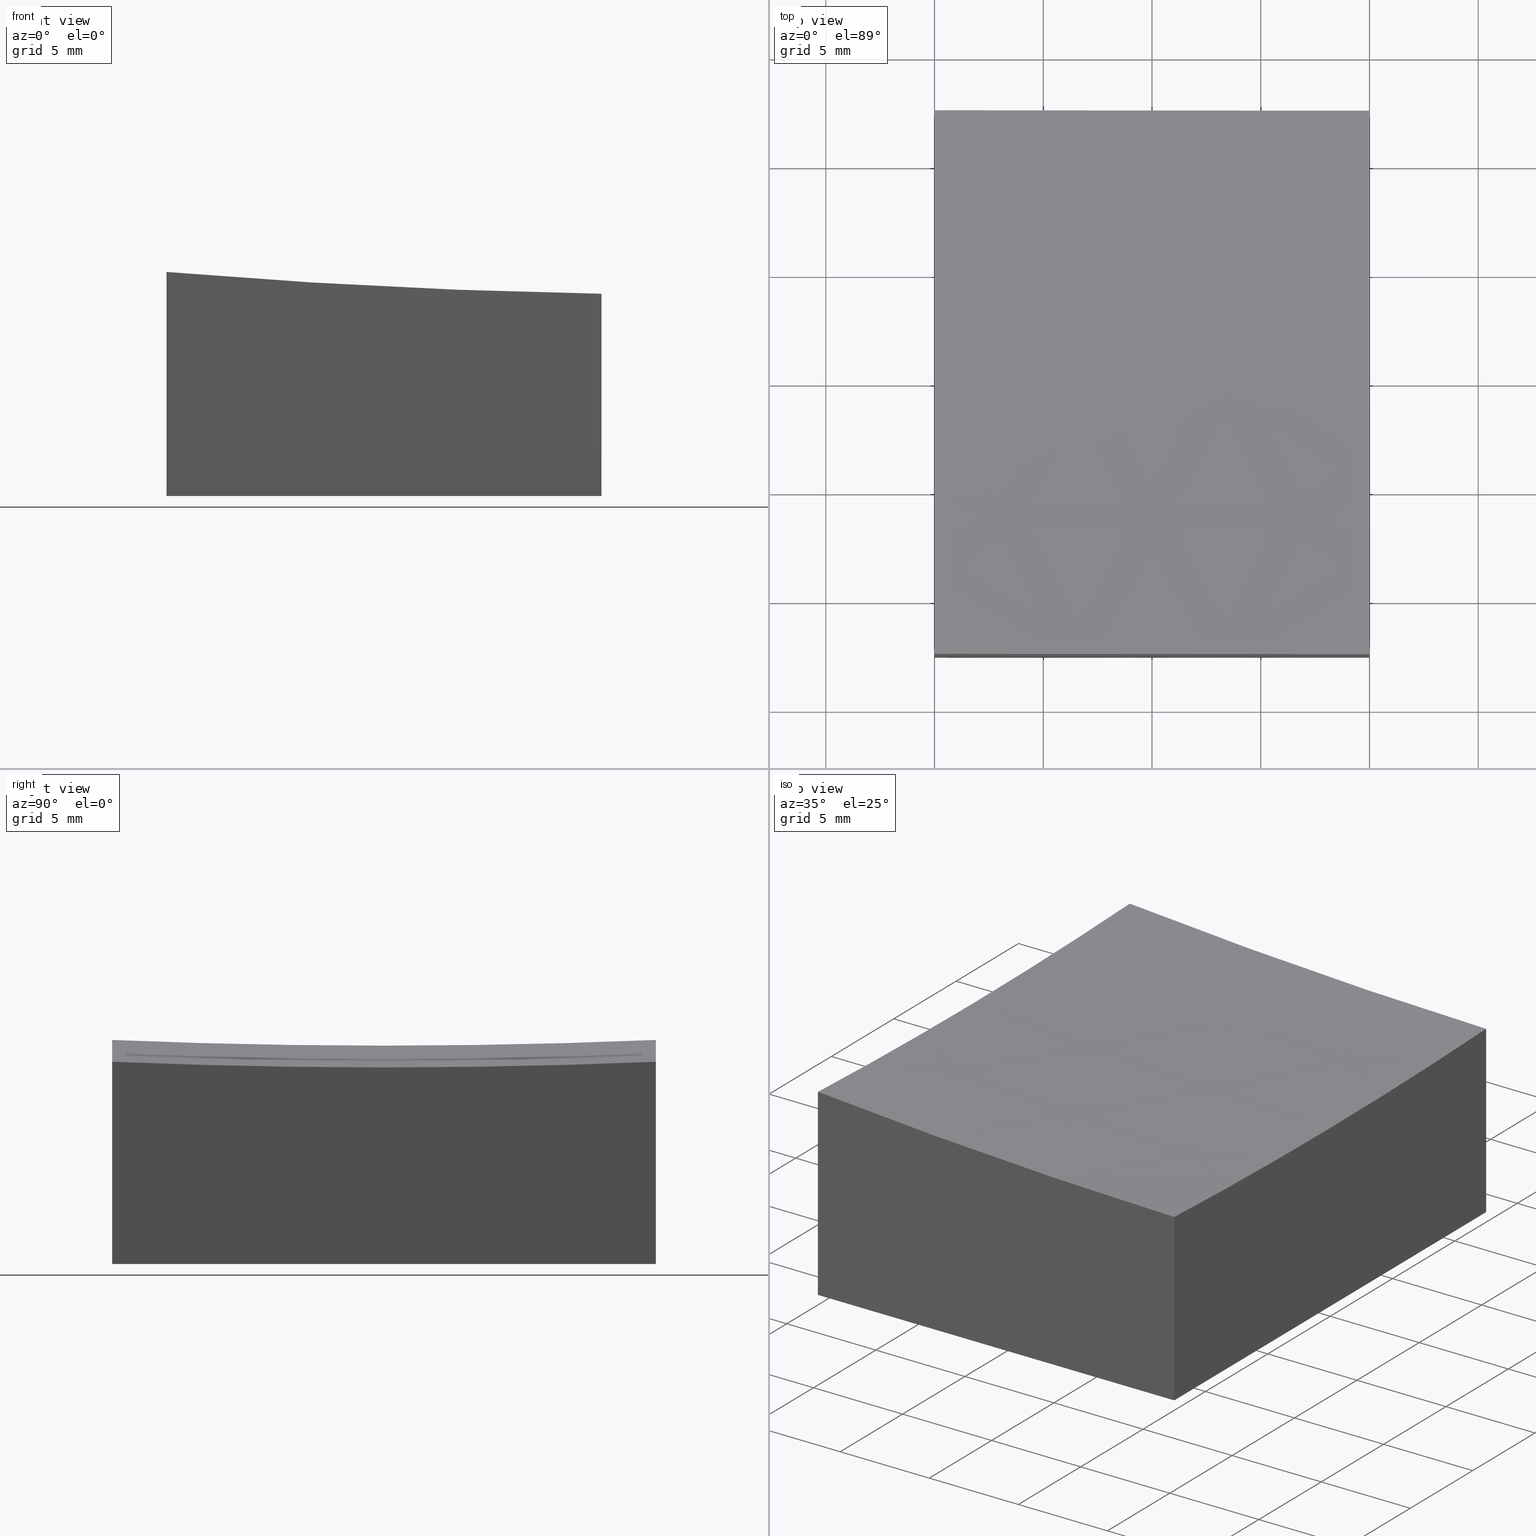
[diagram: canonical four-view strip — front | top / right | iso, engineering-drawing reading convention]
A machine part, canonical four-view strip (front | top / right | iso — engineering-drawing reading convention). The complete STEP part file that produces these views, byte-faithful:
ISO-10303-21;
HEADER;
FILE_DESCRIPTION (( 'STEP AP203' ),
    '1' );
FILE_NAME ('270638.step',
    '2024-12-24T02:21:32',
    ( '' ),
    ( '' ),
    'SwSTEP 2.0',
    'SolidWorks 2020',
    '' );
FILE_SCHEMA (( 'CONFIG_CONTROL_DESIGN' ));
ENDSEC;

DATA;
#1 = ORIENTED_EDGE ( 'NONE', *, *, #180, .F. ) ;
#2 = FACE_OUTER_BOUND ( 'NONE', #234, .T. ) ;
#3 = AXIS2_PLACEMENT_3D ( 'NONE', #55, #5, #74 ) ;
#4 = DIRECTION ( 'NONE',  ( -1.000000000000000000, -1.734723475976807094E-16, 0.000000000000000000 ) ) ;
#5 = DIRECTION ( 'NONE',  ( 0.000000000000000000, 1.000000000000000000, -0.000000000000000000 ) ) ;
#6 = LINE ( 'NONE', #240, #251 ) ;
#7 = DATE_AND_TIME ( #201, #185 ) ;
#8 = DIRECTION ( 'NONE',  ( -0.000000000000000000, -0.000000000000000000, -1.000000000000000000 ) ) ;
#9 = ADVANCED_FACE ( 'NONE', ( #19 ), #192, .F. ) ;
#10 = ADVANCED_FACE ( 'NONE', ( #154 ), #274, .F. ) ;
#11 = CC_DESIGN_APPROVAL ( #170, ( #153 ) ) ;
#12 = CARTESIAN_POINT ( 'NONE',  ( 10.00000000000000178, -12.50000000000000000, -10.00000000000000000 ) ) ;
#13 = DIRECTION ( 'NONE',  ( -1.000000000000000000, 0.000000000000000000, 0.000000000000000000 ) ) ;
#14 = LOCAL_TIME ( 10, 21, 32.00000000000000000, #111 ) ;
#15 = SECURITY_CLASSIFICATION_LEVEL ( 'unclassified' ) ;
#16 = PRODUCT ( '270638', '270638', '', ( #80 ) ) ;
#17 = COORDINATED_UNIVERSAL_TIME_OFFSET ( 8, 0, .AHEAD. ) ;
#18 = APPROVAL_DATE_TIME ( #92, #115 ) ;
#19 = FACE_OUTER_BOUND ( 'NONE', #132, .T. ) ;
#20 = ORIENTED_EDGE ( 'NONE', *, *, #21, .F. ) ;
#21 = EDGE_CURVE ( 'NONE', #220, #133, #186, .T. ) ;
#22 = ADVANCED_BREP_SHAPE_REPRESENTATION ( '270638', ( #228, #168 ), #88 ) ;
#23 = ORIENTED_EDGE ( 'NONE', *, *, #39, .F. ) ;
#24 = APPROVAL_PERSON_ORGANIZATION ( #163, #115, #273 ) ;
#25 = VERTEX_POINT ( 'NONE', #73 ) ;
#26 = VERTEX_POINT ( 'NONE', #79 ) ;
#27 = LINE ( 'NONE', #246, #130 ) ;
#28 = EDGE_CURVE ( 'NONE', #195, #118, #260, .T. ) ;
#29 = LOCAL_TIME ( 10, 21, 32.00000000000000000, #17 ) ;
#30 = CARTESIAN_POINT ( 'NONE',  ( -9.999999999999998224, -12.50000000000000355, -10.00000000000000000 ) ) ;
#31 =( LENGTH_UNIT ( ) NAMED_UNIT ( * ) SI_UNIT ( .MILLI., .METRE. ) );
#32 = EDGE_CURVE ( 'NONE', #190, #220, #227, .T. ) ;
#33 = DIRECTION ( 'NONE',  ( 0.000000000000000000, -0.000000000000000000, 1.000000000000000000 ) ) ;
#34 = DIRECTION ( 'NONE',  ( -1.000000000000000000, -1.734723475976807094E-16, 0.000000000000000000 ) ) ;
#35 = CARTESIAN_POINT ( 'NONE',  ( -9.999999999999998224, -12.50000000000000355, 10.00000000000000000 ) ) ;
#36 = VECTOR ( 'NONE', #134, 1000.000000000000000 ) ;
#37 = DATE_AND_TIME ( #229, #62 ) ;
#38 = DESIGN_CONTEXT ( 'detailed design', #194, 'design' ) ;
#39 = EDGE_CURVE ( 'NONE', #218, #217, #222, .T. ) ;
#40 = EDGE_CURVE ( 'NONE', #118, #217, #98, .T. ) ;
#41 = APPLICATION_CONTEXT ( 'configuration controlled 3d designs of mechanical parts and assemblies' ) ;
#42 = CC_DESIGN_APPROVAL ( #115, ( #156 ) ) ;
#43 = ORIENTED_EDGE ( 'NONE', *, *, #28, .F. ) ;
#44 = ORIENTED_EDGE ( 'NONE', *, *, #180, .T. ) ;
#45 = DIRECTION ( 'NONE',  ( 1.000000000000000000, 1.734723475976807094E-16, 0.000000000000000000 ) ) ;
#46 = ORIENTED_EDGE ( 'NONE', *, *, #165, .F. ) ;
#47 = VERTEX_POINT ( 'NONE', #167 ) ;
#48 = DIRECTION ( 'NONE',  ( 1.000000000000000000, 1.736231275892908730E-16, 0.000000000000000000 ) ) ;
#49 = ADVANCED_FACE ( 'NONE', ( #100 ), #124, .F. ) ;
#50 = CARTESIAN_POINT ( 'NONE',  ( -9.999999999999996447, 0.000000000000000000, 299.0000000000000000 ) ) ;
#51 = COORDINATED_UNIVERSAL_TIME_OFFSET ( 8, 0, .AHEAD. ) ;
#52 = PRODUCT_RELATED_PRODUCT_CATEGORY ( 'detail', '', ( #16 ) ) ;
#53 = CIRCLE ( 'NONE', #210, 299.7394702070449171 ) ;
#54 = CARTESIAN_POINT ( 'NONE',  ( 10.00000000000000178, -12.50000000000000000, -10.00000000000000000 ) ) ;
#55 = CARTESIAN_POINT ( 'NONE',  ( 15.00000000000003908, 0.000000000000000000, 299.0000000000000000 ) ) ;
#56 = CARTESIAN_POINT ( 'NONE',  ( -9.999999999999996447, 0.000000000000000000, 0.04348142246501929264 ) ) ;
#57 = APPROVAL_ROLE ( '' ) ;
#58 = CARTESIAN_POINT ( 'NONE',  ( -9.999999999999996447, 0.000000000000000000, 299.0000000000000000 ) ) ;
#59 = PERSON ( 'δָ��', 'δָ��', 'δָ��', ('δָ��'), ('δָ��'), ('δָ��') ) ;
#60 =( NAMED_UNIT ( * ) SI_UNIT ( $, .STERADIAN. ) SOLID_ANGLE_UNIT ( ) );
#61 = CC_DESIGN_DATE_AND_TIME_ASSIGNMENT ( #272, #109, ( #153 ) ) ;
#62 = LOCAL_TIME ( 10, 21, 32.00000000000000000, #125 ) ;
#63 = PERSON_AND_ORGANIZATION ( #59, #175 ) ;
#64 = DATE_AND_TIME ( #250, #29 ) ;
#65 = PRODUCT_DEFINITION_SHAPE ( 'NONE', 'NONE',  #164 ) ;
#66 = EDGE_LOOP ( 'NONE', ( #23, #255, #157, #71, #232 ) ) ;
#67 = ORIENTED_EDGE ( 'NONE', *, *, #135, .T. ) ;
#68 = AXIS2_PLACEMENT_3D ( 'NONE', #202, #104, #179 ) ;
#69 = DIRECTION ( 'NONE',  ( 1.000000000000000000, 0.000000000000000000, 0.000000000000000000 ) ) ;
#70 = EDGE_LOOP ( 'NONE', ( #46, #253, #89, #43 ) ) ;
#71 = ORIENTED_EDGE ( 'NONE', *, *, #85, .T. ) ;
#72 = DIRECTION ( 'NONE',  ( -0.000000000000000000, -0.000000000000000000, -1.000000000000000000 ) ) ;
#73 = CARTESIAN_POINT ( 'NONE',  ( -9.999999999999998224, 12.49999999999999645, 0.3049213662870142727 ) ) ;
#74 = DIRECTION ( 'NONE',  ( -1.000000000000000000, 0.000000000000000000, 0.000000000000000000 ) ) ;
#75 = ADVANCED_FACE ( 'NONE', ( #2 ), #242, .F. ) ;
#76 = DIRECTION ( 'NONE',  ( 1.734723475976807094E-16, -1.000000000000000000, 0.000000000000000000 ) ) ;
#77 = DATE_TIME_ROLE ( 'creation_date' ) ;
#78 = AXIS2_PLACEMENT_3D ( 'NONE', #58, #181, #119 ) ;
#79 = CARTESIAN_POINT ( 'NONE',  ( -9.999999999999998224, -12.50000000000000355, 0.3049213662870142727 ) ) ;
#80 = MECHANICAL_CONTEXT ( 'NONE', #41, 'mechanical' ) ;
#81 = CARTESIAN_POINT ( 'NONE',  ( 15.00000000000003908, 0.000000000000000000, 299.0000000000000000 ) ) ;
#82 = FACE_OUTER_BOUND ( 'NONE', #66, .T. ) ;
#83 = PERSON_AND_ORGANIZATION ( #59, #175 ) ;
#84 = CIRCLE ( 'NONE', #78, 298.9565185775349505 ) ;
#85 = EDGE_CURVE ( 'NONE', #133, #118, #27, .T. ) ;
#86 = EDGE_CURVE ( 'NONE', #190, #25, #84, .T. ) ;
#87 = CALENDAR_DATE ( 2024, 24, 12 ) ;
#88 =( GEOMETRIC_REPRESENTATION_CONTEXT ( 3 ) GLOBAL_UNCERTAINTY_ASSIGNED_CONTEXT ( ( #196 ) ) GLOBAL_UNIT_ASSIGNED_CONTEXT ( ( #31, #266, #60 ) ) REPRESENTATION_CONTEXT ( 'NONE', 'WORKASPACE' ) );
#89 = ORIENTED_EDGE ( 'NONE', *, *, #40, .F. ) ;
#90 = DIRECTION ( 'NONE',  ( 1.734723475976807094E-16, -1.000000000000000000, 0.000000000000000000 ) ) ;
#91 = EDGE_LOOP ( 'NONE', ( #117, #277, #176, #93 ) ) ;
#92 = DATE_AND_TIME ( #208, #14 ) ;
#93 = ORIENTED_EDGE ( 'NONE', *, *, #28, .T. ) ;
#94 = CC_DESIGN_PERSON_AND_ORGANIZATION_ASSIGNMENT ( #63, #173, ( #156 ) ) ;
#95 = ORIENTED_EDGE ( 'NONE', *, *, #275, .F. ) ;
#96 = CARTESIAN_POINT ( 'NONE',  ( 10.00000000000000178, 12.50000000000000000, 10.00000000000000000 ) ) ;
#97 = VECTOR ( 'NONE', #8, 1000.000000000000000 ) ;
#98 = LINE ( 'NONE', #200, #249 ) ;
#99 = APPROVAL_DATE_TIME ( #37, #219 ) ;
#100 = FACE_OUTER_BOUND ( 'NONE', #70, .T. ) ;
#101 = DIRECTION ( 'NONE',  ( -0.000000000000000000, -0.000000000000000000, -1.000000000000000000 ) ) ;
#102 = FACE_OUTER_BOUND ( 'NONE', #197, .T. ) ;
#103 = AXIS2_PLACEMENT_3D ( 'NONE', #206, #13, #139 ) ;
#104 = DIRECTION ( 'NONE',  ( 0.000000000000000000, 1.000000000000000000, -0.000000000000000000 ) ) ;
#105 = CARTESIAN_POINT ( 'NONE',  ( 10.00000000000000178, 0.000000000000000000, 299.0000000000000000 ) ) ;
#106 = CARTESIAN_POINT ( 'NONE',  ( 10.00000000000000178, 12.50000000000000000, -0.6977644227597612492 ) ) ;
#107 = VECTOR ( 'NONE', #244, 1000.000000000000000 ) ;
#108 = CC_DESIGN_DATE_AND_TIME_ASSIGNMENT ( #7, #77, ( #164 ) ) ;
#109 = DATE_TIME_ROLE ( 'classification_date' ) ;
#110 = PERSON_AND_ORGANIZATION ( #59, #175 ) ;
#111 = COORDINATED_UNIVERSAL_TIME_OFFSET ( 8, 0, .AHEAD. ) ;
#112 = EDGE_LOOP ( 'NONE', ( #1, #67, #215, #177 ) ) ;
#113 = ORIENTED_EDGE ( 'NONE', *, *, #86, .F. ) ;
#114 = CC_DESIGN_SECURITY_CLASSIFICATION ( #153, ( #156 ) ) ;
#115 = APPROVAL ( #243, 'δָ��' ) ;
#116 = EDGE_CURVE ( 'NONE', #133, #26, #53, .T. ) ;
#117 = ORIENTED_EDGE ( 'NONE', *, *, #85, .F. ) ;
#118 = VERTEX_POINT ( 'NONE', #54 ) ;
#119 = DIRECTION ( 'NONE',  ( 0.000000000000000000, 0.000000000000000000, -1.000000000000000000 ) ) ;
#120 = AXIS2_PLACEMENT_3D ( 'NONE', #239, #33, #122 ) ;
#121 = PLANE ( 'NONE',  #209 ) ;
#122 = DIRECTION ( 'NONE',  ( 1.000000000000000000, 0.000000000000000000, -0.000000000000000000 ) ) ;
#123 = LINE ( 'NONE', #35, #161 ) ;
#124 = PLANE ( 'NONE',  #120 ) ;
#125 = COORDINATED_UNIVERSAL_TIME_OFFSET ( 8, 0, .AHEAD. ) ;
#126 = APPROVAL_PERSON_ORGANIZATION ( #171, #170, #231 ) ;
#127 = PERSON_AND_ORGANIZATION_ROLE ( 'creator' ) ;
#128 = CC_DESIGN_APPROVAL ( #219, ( #164 ) ) ;
#129 = ORIENTED_EDGE ( 'NONE', *, *, #86, .T. ) ;
#130 = VECTOR ( 'NONE', #101, 1000.000000000000000 ) ;
#131 = ORIENTED_EDGE ( 'NONE', *, *, #165, .T. ) ;
#132 = EDGE_LOOP ( 'NONE', ( #172, #237, #129, #44, #131 ) ) ;
#133 = VERTEX_POINT ( 'NONE', #159 ) ;
#134 = DIRECTION ( 'NONE',  ( 1.000000000000000000, 1.734723475976807094E-16, -0.000000000000000000 ) ) ;
#135 = EDGE_CURVE ( 'NONE', #25, #218, #233, .T. ) ;
#136 = DIRECTION ( 'NONE',  ( 1.000000000000000000, 0.000000000000000000, 0.000000000000000000 ) ) ;
#137 = CIRCLE ( 'NONE', #248, 298.9565185775349505 ) ;
#138 = EDGE_CURVE ( 'NONE', #217, #47, #226, .T. ) ;
#139 = DIRECTION ( 'NONE',  ( 0.000000000000000000, 0.000000000000000000, 1.000000000000000000 ) ) ;
#140 = DIRECTION ( 'NONE',  ( 0.000000000000000000, -1.000000000000000000, 0.000000000000000000 ) ) ;
#141 = PERSON_AND_ORGANIZATION_ROLE ( 'creator' ) ;
#142 = CC_DESIGN_PERSON_AND_ORGANIZATION_ASSIGNMENT ( #189, #127, ( #156 ) ) ;
#143 = FACE_OUTER_BOUND ( 'NONE', #91, .T. ) ;
#144 = CARTESIAN_POINT ( 'NONE',  ( -9.999999999999998224, -12.50000000000000355, -10.00000000000000000 ) ) ;
#145 = DIRECTION ( 'NONE',  ( 0.000000000000000000, 0.000000000000000000, 1.000000000000000000 ) ) ;
#146 = APPLICATION_PROTOCOL_DEFINITION ( 'international standard', 'config_control_design', 1994, #194 ) ;
#147 = AXIS2_PLACEMENT_3D ( 'NONE', #105, #184, #203 ) ;
#148 = APPROVAL_DATE_TIME ( #64, #170 ) ;
#149 = PERSON_AND_ORGANIZATION_ROLE ( 'classification_officer' ) ;
#150 = ORIENTED_EDGE ( 'NONE', *, *, #116, .F. ) ;
#151 = VECTOR ( 'NONE', #4, 1000.000000000000000 ) ;
#152 = ORIENTED_EDGE ( 'NONE', *, *, #135, .F. ) ;
#153 = SECURITY_CLASSIFICATION ( '', '', #15 ) ;
#154 = FACE_OUTER_BOUND ( 'NONE', #112, .T. ) ;
#155 = DIRECTION ( 'NONE',  ( -1.000000000000000000, 0.000000000000000000, 0.000000000000000000 ) ) ;
#156 = PRODUCT_DEFINITION_FORMATION_WITH_SPECIFIED_SOURCE ( '�κ�', '', #16, .NOT_KNOWN. ) ;
#157 = ORIENTED_EDGE ( 'NONE', *, *, #21, .T. ) ;
#158 = CARTESIAN_POINT ( 'NONE',  ( 10.00000000000000178, -12.50000000000000000, 10.00000000000000000 ) ) ;
#159 = CARTESIAN_POINT ( 'NONE',  ( 10.00000000000000178, -12.50000000000000000, -0.6977644227598167603 ) ) ;
#160 = DIRECTION ( 'NONE',  ( 0.000000000000000000, 0.000000000000000000, -1.000000000000000000 ) ) ;
#161 = VECTOR ( 'NONE', #182, 1000.000000000000000 ) ;
#162 = AXIS2_PLACEMENT_3D ( 'NONE', #258, #155, #204 ) ;
#163 = PERSON_AND_ORGANIZATION ( #59, #175 ) ;
#164 = PRODUCT_DEFINITION ( 'δ֪', '', #156, #38 ) ;
#165 = EDGE_CURVE ( 'NONE', #47, #195, #261, .T. ) ;
#166 = CARTESIAN_POINT ( 'NONE',  ( 15.00000000000003730, 12.50000000000000178, 299.0000000000000000 ) ) ;
#167 = CARTESIAN_POINT ( 'NONE',  ( -9.999999999999998224, 12.49999999999999645, -10.00000000000000000 ) ) ;
#168 = AXIS2_PLACEMENT_3D ( 'NONE', #247, #145, #207 ) ;
#169 = AXIS2_PLACEMENT_3D ( 'NONE', #235, #90, #45 ) ;
#170 = APPROVAL ( #252, 'δָ��' ) ;
#171 = PERSON_AND_ORGANIZATION ( #59, #175 ) ;
#172 = ORIENTED_EDGE ( 'NONE', *, *, #213, .F. ) ;
#173 = PERSON_AND_ORGANIZATION_ROLE ( 'design_supplier' ) ;
#174 = ORIENTED_EDGE ( 'NONE', *, *, #193, .F. ) ;
#175 = ORGANIZATION ( 'δָ��', 'δָ��', '' ) ;
#176 = ORIENTED_EDGE ( 'NONE', *, *, #213, .T. ) ;
#177 = ORIENTED_EDGE ( 'NONE', *, *, #138, .T. ) ;
#178 = CARTESIAN_POINT ( 'NONE',  ( 10.00000000000000178, 12.50000000000000000, -10.00000000000000000 ) ) ;
#179 = DIRECTION ( 'NONE',  ( -1.000000000000000000, 0.000000000000000000, 0.000000000000000000 ) ) ;
#180 = EDGE_CURVE ( 'NONE', #25, #47, #6, .T. ) ;
#181 = DIRECTION ( 'NONE',  ( 1.000000000000000000, 0.000000000000000000, 0.000000000000000000 ) ) ;
#182 = DIRECTION ( 'NONE',  ( -0.000000000000000000, -0.000000000000000000, -1.000000000000000000 ) ) ;
#183 = CARTESIAN_POINT ( 'NONE',  ( 10.00000000000000178, 0.000000000000000000, -0.9583304394129021908 ) ) ;
#184 = DIRECTION ( 'NONE',  ( -1.000000000000000000, 0.000000000000000000, 0.000000000000000000 ) ) ;
#185 = LOCAL_TIME ( 10, 21, 32.00000000000000000, #51 ) ;
#186 = CIRCLE ( 'NONE', #162, 299.9583304394128618 ) ;
#187 = APPROVAL_PERSON_ORGANIZATION ( #224, #219, #57 ) ;
#188 = CC_DESIGN_PERSON_AND_ORGANIZATION_ASSIGNMENT ( #83, #245, ( #16 ) ) ;
#189 = PERSON_AND_ORGANIZATION ( #59, #175 ) ;
#190 = VERTEX_POINT ( 'NONE', #56 ) ;
#191 = AXIS2_PLACEMENT_3D ( 'NONE', #81, #140, #221 ) ;
#192 = PLANE ( 'NONE',  #276 ) ;
#193 = EDGE_CURVE ( 'NONE', #26, #190, #137, .T. ) ;
#194 = APPLICATION_CONTEXT ( 'configuration controlled 3d designs of mechanical parts and assemblies' ) ;
#195 = VERTEX_POINT ( 'NONE', #30 ) ;
#196 = UNCERTAINTY_MEASURE_WITH_UNIT (LENGTH_MEASURE( 1.000000000000000082E-05 ), #31, 'distance_accuracy_value', 'NONE');
#197 = EDGE_LOOP ( 'NONE', ( #113, #259, #95, #152 ) ) ;
#198 = DIRECTION ( 'NONE',  ( -1.000000000000000000, -1.736231275892908730E-16, 0.000000000000000000 ) ) ;
#199 = APPROVAL_STATUS ( 'not_yet_approved' ) ;
#200 = CARTESIAN_POINT ( 'NONE',  ( 10.00000000000000178, -12.50000000000000000, -10.00000000000000000 ) ) ;
#201 = CALENDAR_DATE ( 2024, 24, 12 ) ;
#202 = CARTESIAN_POINT ( 'NONE',  ( 15.00000000000003908, 0.000000000000000000, 299.0000000000000000 ) ) ;
#203 = DIRECTION ( 'NONE',  ( 0.000000000000000000, 0.000000000000000000, 1.000000000000000000 ) ) ;
#204 = DIRECTION ( 'NONE',  ( 0.000000000000000000, 0.000000000000000000, 1.000000000000000000 ) ) ;
#205 = CLOSED_SHELL ( 'NONE', ( #271, #9, #212, #257, #10, #49, #75 ) ) ;
#206 = CARTESIAN_POINT ( 'NONE',  ( 10.00000000000000178, -12.50000000000000000, 10.00000000000000000 ) ) ;
#207 = DIRECTION ( 'NONE',  ( 1.000000000000000000, 0.000000000000000000, 0.000000000000000000 ) ) ;
#208 = CALENDAR_DATE ( 2024, 24, 12 ) ;
#209 = AXIS2_PLACEMENT_3D ( 'NONE', #158, #225, #34 ) ;
#210 = AXIS2_PLACEMENT_3D ( 'NONE', #263, #265, #198 ) ;
#211 = LOCAL_TIME ( 10, 21, 32.00000000000000000, #254 ) ;
#212 = ADVANCED_FACE ( 'NONE', ( #143 ), #121, .F. ) ;
#213 = EDGE_CURVE ( 'NONE', #26, #195, #123, .T. ) ;
#214 = SHAPE_DEFINITION_REPRESENTATION ( #65, #22 ) ;
#215 = ORIENTED_EDGE ( 'NONE', *, *, #39, .T. ) ;
#216 = ORIENTED_EDGE ( 'NONE', *, *, #32, .F. ) ;
#217 = VERTEX_POINT ( 'NONE', #268 ) ;
#218 = VERTEX_POINT ( 'NONE', #106 ) ;
#219 = APPROVAL ( #199, 'δָ��' ) ;
#220 = VERTEX_POINT ( 'NONE', #183 ) ;
#221 = DIRECTION ( 'NONE',  ( 0.000000000000000000, 0.000000000000000000, -1.000000000000000000 ) ) ;
#222 = LINE ( 'NONE', #96, #97 ) ;
#223 = DIRECTION ( 'NONE',  ( 0.000000000000000000, 1.000000000000000000, 0.000000000000000000 ) ) ;
#224 = PERSON_AND_ORGANIZATION ( #59, #175 ) ;
#225 = DIRECTION ( 'NONE',  ( -1.734723475976807094E-16, 1.000000000000000000, 0.000000000000000000 ) ) ;
#226 = LINE ( 'NONE', #178, #151 ) ;
#227 = CIRCLE ( 'NONE', #191, 300.0000000000000000 ) ;
#228 = MANIFOLD_SOLID_BREP ( '�г�-��ת8', #205 ) ;
#229 = CALENDAR_DATE ( 2024, 24, 12 ) ;
#230 = CIRCLE ( 'NONE', #147, 299.9583304394128618 ) ;
#231 = APPROVAL_ROLE ( '' ) ;
#232 = ORIENTED_EDGE ( 'NONE', *, *, #40, .T. ) ;
#233 = CIRCLE ( 'NONE', #264, 299.7394702070449171 ) ;
#234 = EDGE_LOOP ( 'NONE', ( #216, #174, #150, #20 ) ) ;
#235 = CARTESIAN_POINT ( 'NONE',  ( 10.00000000000000178, 12.50000000000000000, 10.00000000000000000 ) ) ;
#236 = CC_DESIGN_PERSON_AND_ORGANIZATION_ASSIGNMENT ( #241, #141, ( #164 ) ) ;
#237 = ORIENTED_EDGE ( 'NONE', *, *, #193, .T. ) ;
#238 = DIRECTION ( 'NONE',  ( 0.000000000000000000, 0.000000000000000000, -1.000000000000000000 ) ) ;
#239 = CARTESIAN_POINT ( 'NONE',  ( 0.000000000000000000, 0.000000000000000000, -10.00000000000000000 ) ) ;
#240 = CARTESIAN_POINT ( 'NONE',  ( -9.999999999999998224, 12.49999999999999645, 10.00000000000000000 ) ) ;
#241 = PERSON_AND_ORGANIZATION ( #59, #175 ) ;
#242 = SPHERICAL_SURFACE ( 'NONE', #68, 300.0000000000000000 ) ;
#243 = APPROVAL_STATUS ( 'not_yet_approved' ) ;
#244 = DIRECTION ( 'NONE',  ( -0.000000000000000000, -1.000000000000000000, -0.000000000000000000 ) ) ;
#245 = PERSON_AND_ORGANIZATION_ROLE ( 'design_owner' ) ;
#246 = CARTESIAN_POINT ( 'NONE',  ( 10.00000000000000178, -12.50000000000000000, 10.00000000000000000 ) ) ;
#247 = CARTESIAN_POINT ( 'NONE',  ( 0.000000000000000000, 0.000000000000000000, 0.000000000000000000 ) ) ;
#248 = AXIS2_PLACEMENT_3D ( 'NONE', #50, #136, #160 ) ;
#249 = VECTOR ( 'NONE', #223, 1000.000000000000000 ) ;
#250 = CALENDAR_DATE ( 2024, 24, 12 ) ;
#251 = VECTOR ( 'NONE', #72, 1000.000000000000000 ) ;
#252 = APPROVAL_STATUS ( 'not_yet_approved' ) ;
#253 = ORIENTED_EDGE ( 'NONE', *, *, #138, .F. ) ;
#254 = COORDINATED_UNIVERSAL_TIME_OFFSET ( 8, 0, .AHEAD. ) ;
#255 = ORIENTED_EDGE ( 'NONE', *, *, #275, .T. ) ;
#256 = CARTESIAN_POINT ( 'NONE',  ( -9.999999999999998224, -12.50000000000000355, 10.00000000000000000 ) ) ;
#257 = ADVANCED_FACE ( 'NONE', ( #82 ), #269, .F. ) ;
#258 = CARTESIAN_POINT ( 'NONE',  ( 10.00000000000000178, 0.000000000000000000, 299.0000000000000000 ) ) ;
#259 = ORIENTED_EDGE ( 'NONE', *, *, #32, .T. ) ;
#260 = LINE ( 'NONE', #12, #36 ) ;
#261 = LINE ( 'NONE', #144, #107 ) ;
#262 = SPHERICAL_SURFACE ( 'NONE', #3, 300.0000000000000000 ) ;
#263 = CARTESIAN_POINT ( 'NONE',  ( 15.00000000000004086, -12.49999999999999822, 299.0000000000000000 ) ) ;
#264 = AXIS2_PLACEMENT_3D ( 'NONE', #166, #76, #48 ) ;
#265 = DIRECTION ( 'NONE',  ( -1.734723475976807094E-16, 1.000000000000000000, 0.000000000000000000 ) ) ;
#266 =( NAMED_UNIT ( * ) PLANE_ANGLE_UNIT ( ) SI_UNIT ( $, .RADIAN. ) );
#267 = CC_DESIGN_PERSON_AND_ORGANIZATION_ASSIGNMENT ( #110, #149, ( #153 ) ) ;
#268 = CARTESIAN_POINT ( 'NONE',  ( 10.00000000000000178, 12.50000000000000000, -10.00000000000000000 ) ) ;
#269 = PLANE ( 'NONE',  #103 ) ;
#270 = APPLICATION_PROTOCOL_DEFINITION ( 'international standard', 'config_control_design', 1994, #41 ) ;
#271 = ADVANCED_FACE ( 'NONE', ( #102 ), #262, .F. ) ;
#272 = DATE_AND_TIME ( #87, #211 ) ;
#273 = APPROVAL_ROLE ( '' ) ;
#274 = PLANE ( 'NONE',  #169 ) ;
#275 = EDGE_CURVE ( 'NONE', #218, #220, #230, .T. ) ;
#276 = AXIS2_PLACEMENT_3D ( 'NONE', #256, #69, #238 ) ;
#277 = ORIENTED_EDGE ( 'NONE', *, *, #116, .T. ) ;
ENDSEC;
END-ISO-10303-21;
